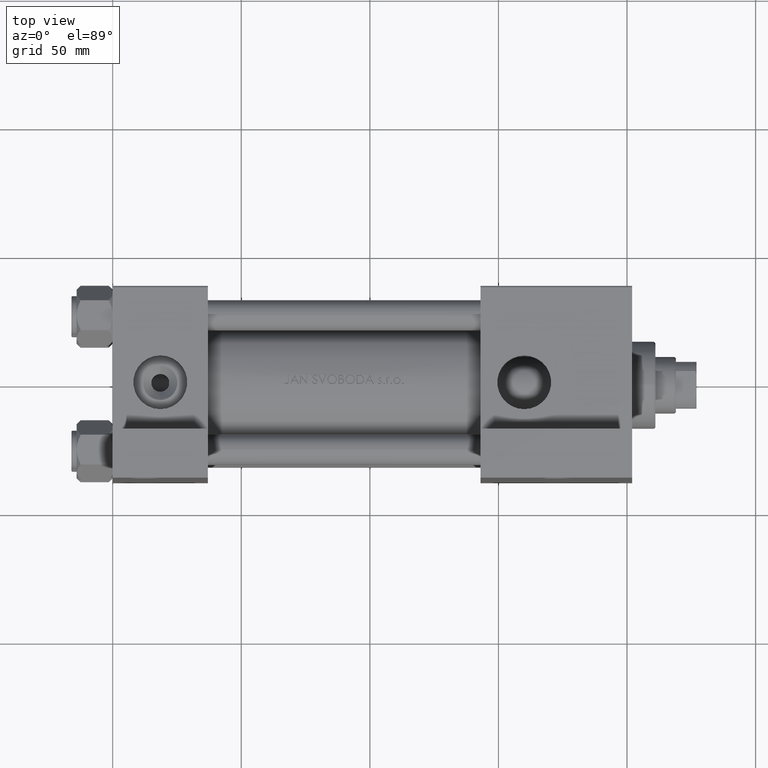
[diagram: clean part render]
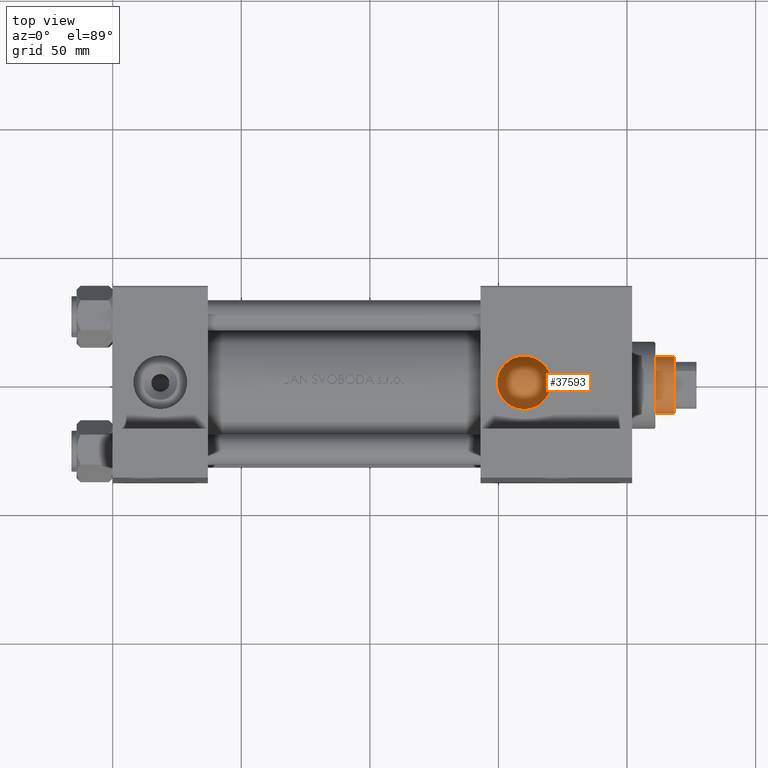
[diagram: same view with one face highlighted and labeled with its STEP entity id]
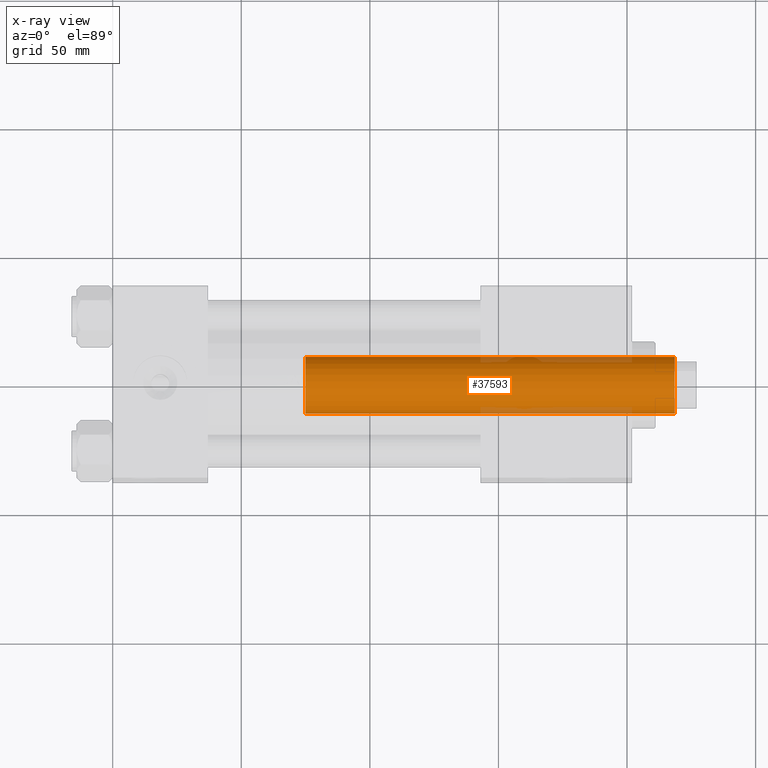
[diagram: x-ray of the same camera — body ghosted, the highlighted face saturated]
A machine part, top view. The second image highlights one B-rep face of the part: STEP entity #37593.
The next image is the same camera in x-ray: the body ghosted, the highlighted face saturated — about 8% of this face is hidden behind the body in this view.
In plain terms, the highlighted cylindrical surface (edge-blend (fillet) strip) has radius 11 mm, axis along (-1, 0, 0).
Its self-contained STEP definition (entity closure, byte-faithful):
#108 = DIRECTION ( 'NONE',  ( 1.000000000000000000, 0.000000000000000000, 0.000000000000000000 ) ) ;
#2154 = CARTESIAN_POINT ( 'NONE',  ( -11.00000000000000000, 0.000000000000000000, 182.0000000000000000 ) ) ;
#2447 = EDGE_CURVE ( 'NONE', #37238, #10418, #32536, .T. ) ;
#3091 = DIRECTION ( 'NONE',  ( 0.000000000000000000, 0.000000000000000000, 1.000000000000000000 ) ) ;
#5717 = DIRECTION ( 'NONE',  ( 0.000000000000000000, 0.000000000000000000, -1.000000000000000000 ) ) ;
#6112 = AXIS2_PLACEMENT_3D ( 'NONE', #22046, #3091, #108 ) ;
#6595 = ORIENTED_EDGE ( 'NONE', *, *, #2447, .T. ) ;
#6892 = CIRCLE ( 'NONE', #6112, 11.00000000000000000 ) ;
#8153 = FACE_OUTER_BOUND ( 'NONE', #28741, .T. ) ;
#8877 = ORIENTED_EDGE ( 'NONE', *, *, #46820, .T. ) ;
#10293 = CARTESIAN_POINT ( 'NONE',  ( 11.00000000000000000, 1.347111479062088405E-15, 182.0000000000000000 ) ) ;
#10418 = VERTEX_POINT ( 'NONE', #39248 ) ;
#11940 = VECTOR ( 'NONE', #39513, 1000.000000000000000 ) ;
#12818 = VERTEX_POINT ( 'NONE', #48165 ) ;
#13941 = DIRECTION ( 'NONE',  ( 1.000000000000000000, 0.000000000000000000, 0.000000000000000000 ) ) ;
#14046 = LINE ( 'NONE', #10293, #37005 ) ;
#15055 = AXIS2_PLACEMENT_3D ( 'NONE', #19133, #34308, #31064 ) ;
#15888 = CYLINDRICAL_SURFACE ( 'NONE', #15055, 11.00000000000000000 ) ;
#19133 = CARTESIAN_POINT ( 'NONE',  ( 0.000000000000000000, 0.000000000000000000, 182.0000000000000000 ) ) ;
#19548 = CARTESIAN_POINT ( 'NONE',  ( 11.00000000000000000, 1.347111479062088405E-15, 181.5000000000000000 ) ) ;
#21539 = EDGE_CURVE ( 'NONE', #35896, #12818, #14046, .T. ) ;
#22046 = CARTESIAN_POINT ( 'NONE',  ( 0.000000000000000000, 0.000000000000000000, 38.00000000000000000 ) ) ;
#23435 = CARTESIAN_POINT ( 'NONE',  ( -11.00000000000000000, 0.000000000000000000, 181.5000000000000000 ) ) ;
#24535 = EDGE_CURVE ( 'NONE', #10418, #12818, #6892, .T. ) ;
#25400 = CARTESIAN_POINT ( 'NONE',  ( 0.000000000000000000, 0.000000000000000000, 181.5000000000000000 ) ) ;
#25508 = DIRECTION ( 'NONE',  ( -0.000000000000000000, -0.000000000000000000, -1.000000000000000000 ) ) ;
#28741 = EDGE_LOOP ( 'NONE', ( #45977, #8877, #6595, #47167 ) ) ;
#31064 = DIRECTION ( 'NONE',  ( -1.000000000000000000, 0.000000000000000000, 0.000000000000000000 ) ) ;
#32536 = LINE ( 'NONE', #2154, #11940 ) ;
#32734 = AXIS2_PLACEMENT_3D ( 'NONE', #25400, #5717, #13941 ) ;
#33508 = CIRCLE ( 'NONE', #32734, 11.00000000000000000 ) ;
#34308 = DIRECTION ( 'NONE',  ( -0.000000000000000000, -0.000000000000000000, -1.000000000000000000 ) ) ;
#35896 = VERTEX_POINT ( 'NONE', #19548 ) ;
#37005 = VECTOR ( 'NONE', #25508, 1000.000000000000000 ) ;
#37238 = VERTEX_POINT ( 'NONE', #23435 ) ;
#37593 = ADVANCED_FACE ( 'NONE', ( #8153 ), #15888, .T. ) ;
#39248 = CARTESIAN_POINT ( 'NONE',  ( -11.00000000000000000, 0.000000000000000000, 38.00000000000000000 ) ) ;
#39513 = DIRECTION ( 'NONE',  ( -0.000000000000000000, -0.000000000000000000, -1.000000000000000000 ) ) ;
#45977 = ORIENTED_EDGE ( 'NONE', *, *, #21539, .F. ) ;
#46820 = EDGE_CURVE ( 'NONE', #35896, #37238, #33508, .T. ) ;
#47167 = ORIENTED_EDGE ( 'NONE', *, *, #24535, .T. ) ;
#48165 = CARTESIAN_POINT ( 'NONE',  ( 11.00000000000000000, 1.347111479062088405E-15, 38.00000000000000000 ) ) ;